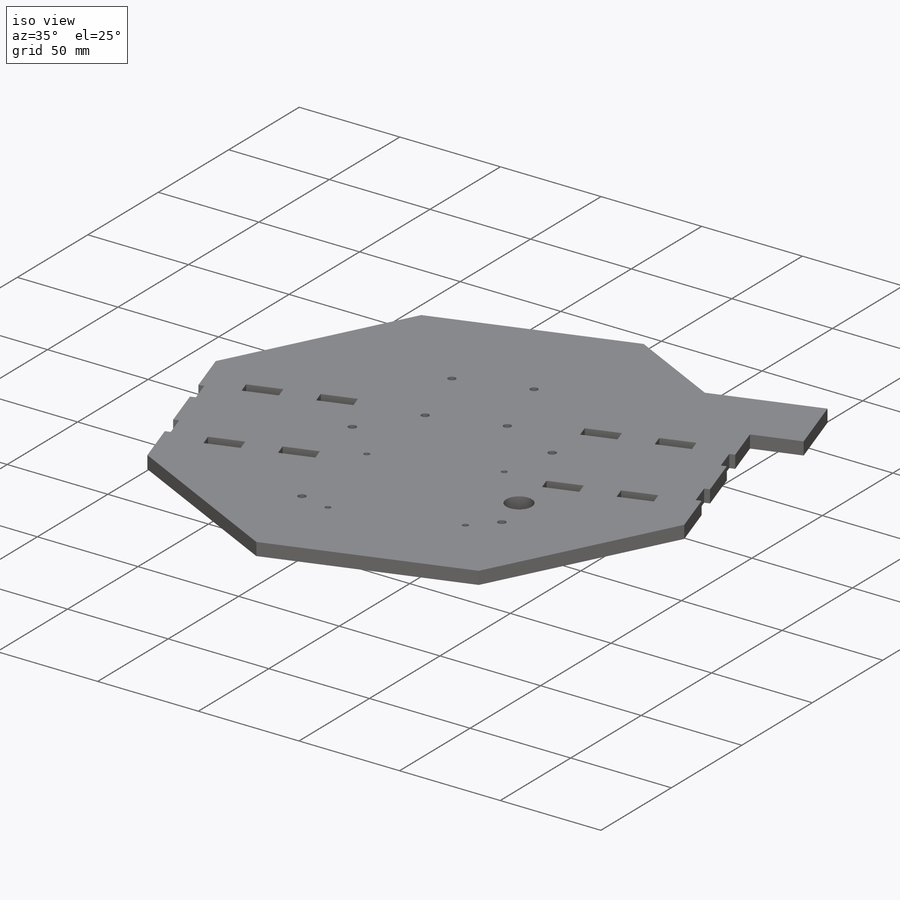
[diagram: iso view]
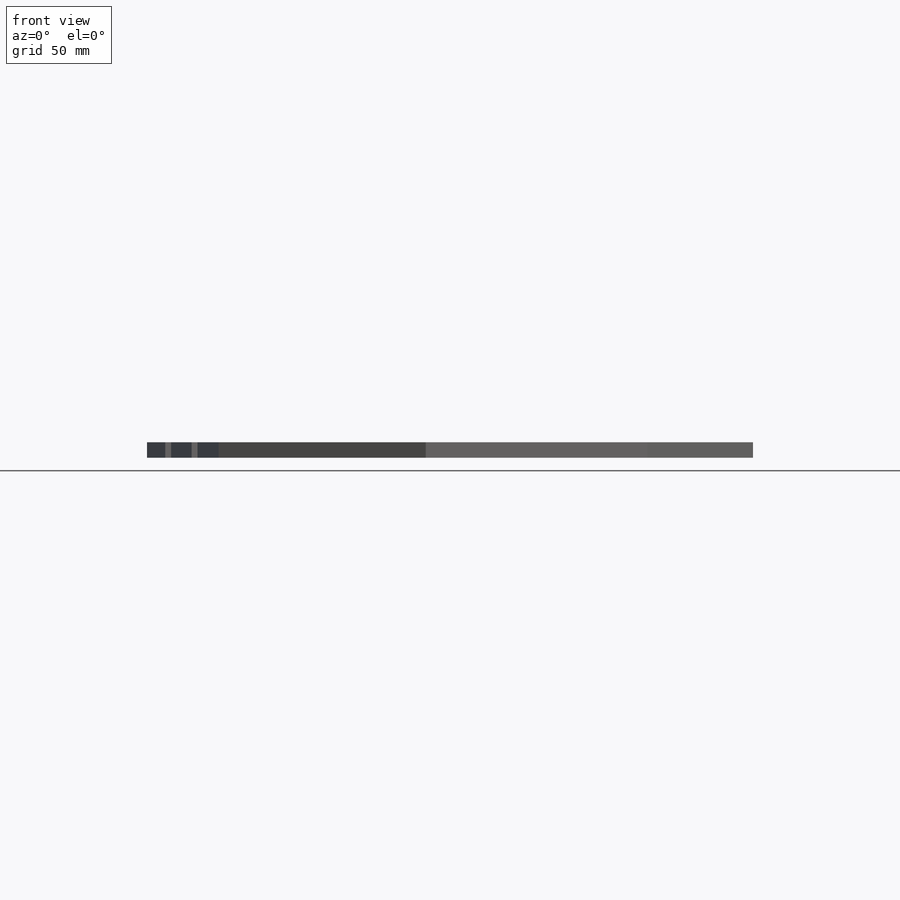
[diagram: front view]
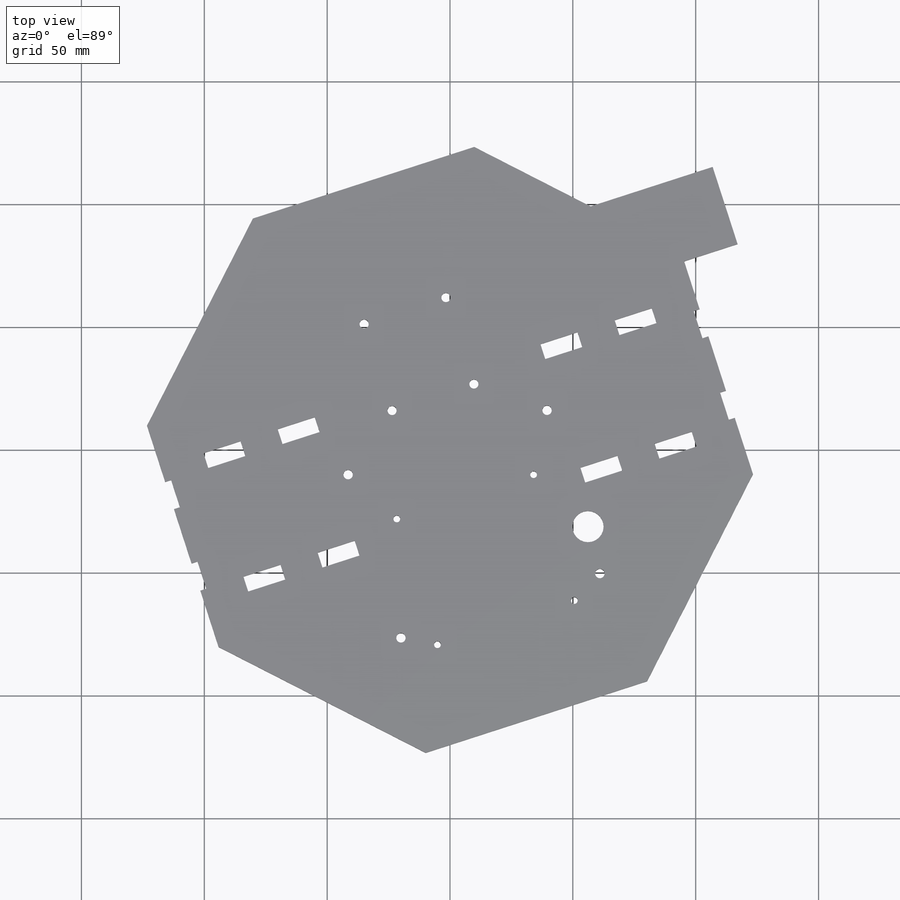
[diagram: top view]
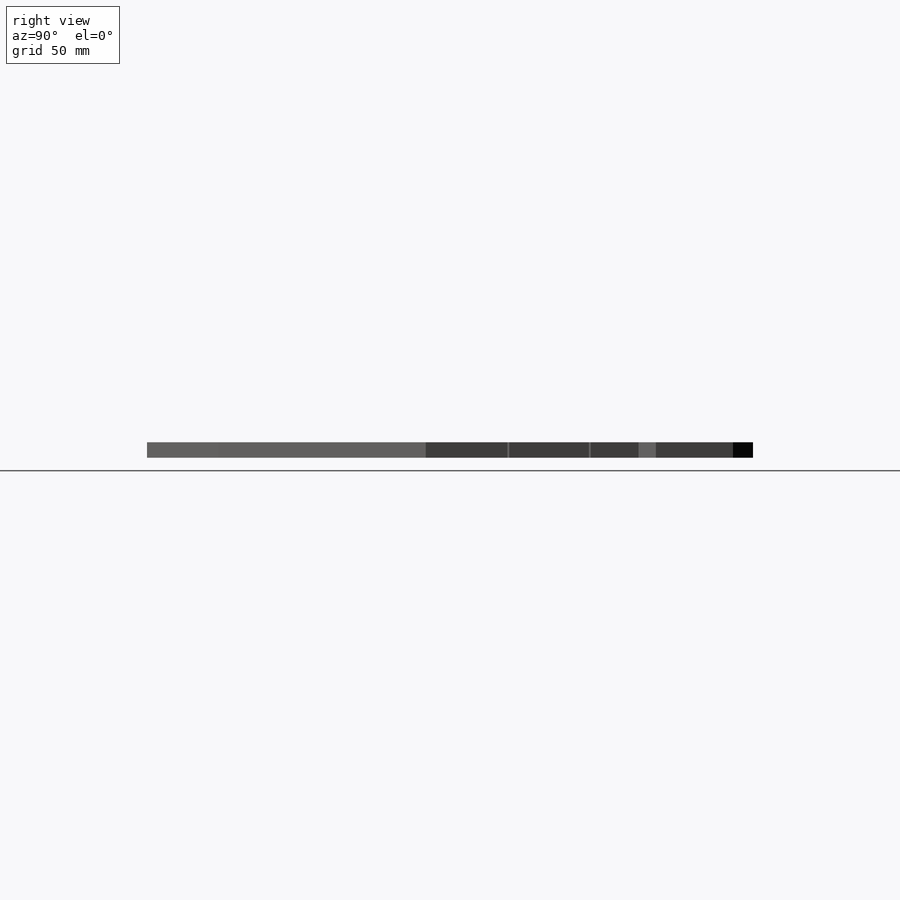
[diagram: right view]
SOLIDWORKS PART (.sldprt)
format: sldprt  version: not decoded by parser v0  size: 451,584 bytes
history: native  units: mm
features: extrude x8, sketch x6, cut_extrude x4, material x1 (+11 scaffold rows collapsed)
feature tree (30):
  scaffold x11  (default folders/planes/origin — collapsed)
  material  "Material <not specified>"
  sketch  "Sketch1"  dims[D1=~186.206428mm]
  extrude  "Boss-Extrude1"  Depth=6.35mm
  sketch  "Sketch3"  dims[D1=22.86mm D2=33.02mm D3=0.0mm]
  extrude  "Boss-Extrude2"  Depth=6.35mm
  sketch  "Sketch6"
  cut_extrude  "Cut-Extrude1"  [1 undecoded]
  sketch  "Sketch7"  dims[D1=12.7mm]
  cut_extrude  "Cut-Extrude2"  [1 undecoded]
  sketch  "Sketch9"  dims[D1=0.0mm]
  cut_extrude  "Cut-Extrude3"  [1 undecoded]
  sketch  "Sketch10"
  cut_extrude  "Cut-Extrude4"  [1 undecoded]
  extrude  "mountFront2<2>@Platform1"  [1 undecoded]
  extrude  "motorMountSide<5>@Platform1"  [1 undecoded]
  extrude  "motorMountSide<6>@Platform1"  [1 undecoded]
  extrude  "motorMountSide<3>@Platform1"  [1 undecoded]
  extrude  "mountFront2<1>@Platform1"  [1 undecoded]
  extrude  "motorMountSide<4>@Platform3"  [1 undecoded]
decode coverage: 6 of 18 modeling features carry decoded parameters
note: ~ marks probable driven/reference dimensions
note: 10 parameter values undecoded
summary: no parameter record found for 10 features
note: suppression state not decoded; provenance and decode notes live in map.json
